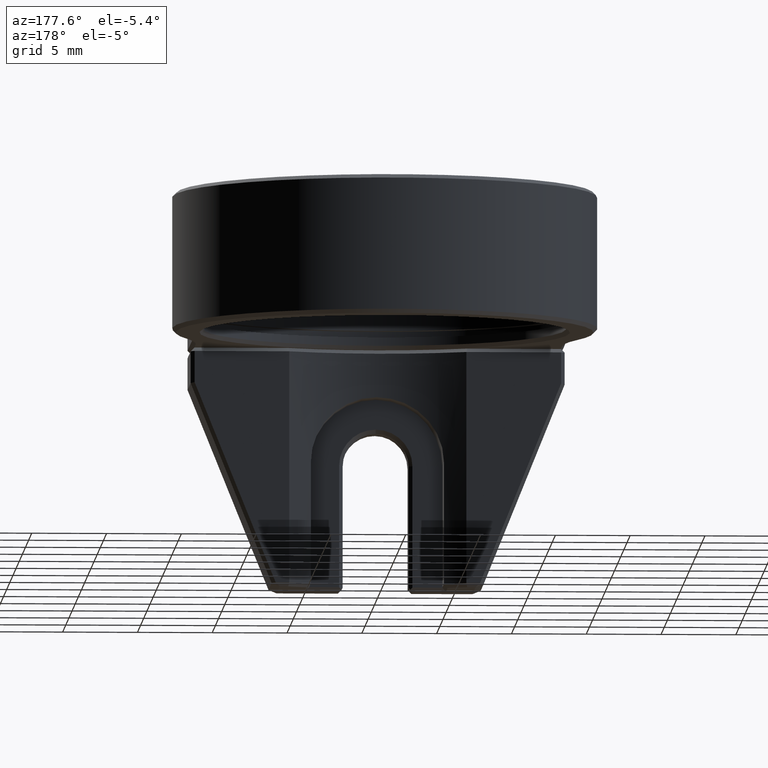
[diagram: clean part render]
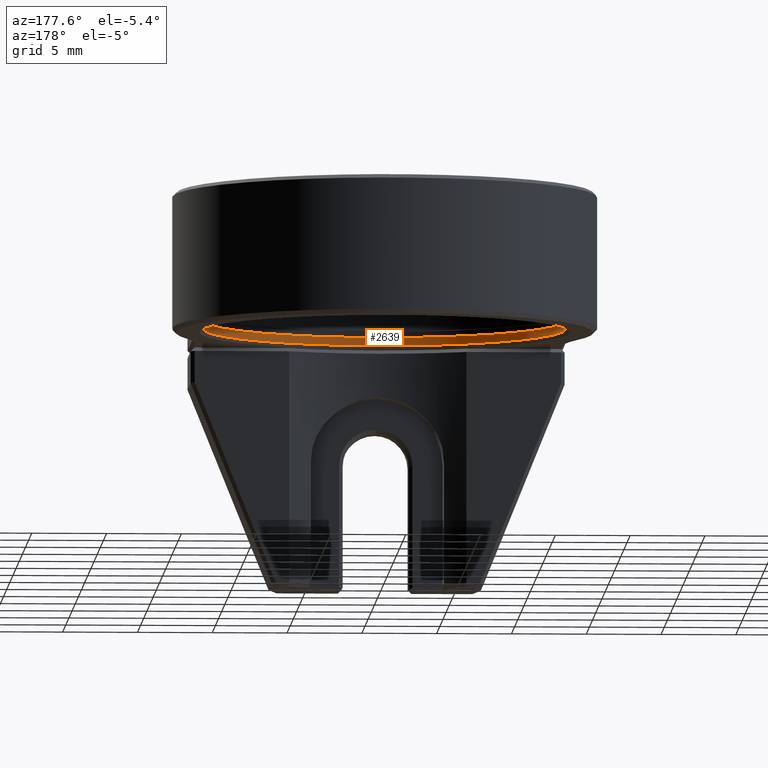
[diagram: same view with one face highlighted and labeled with its STEP entity id]
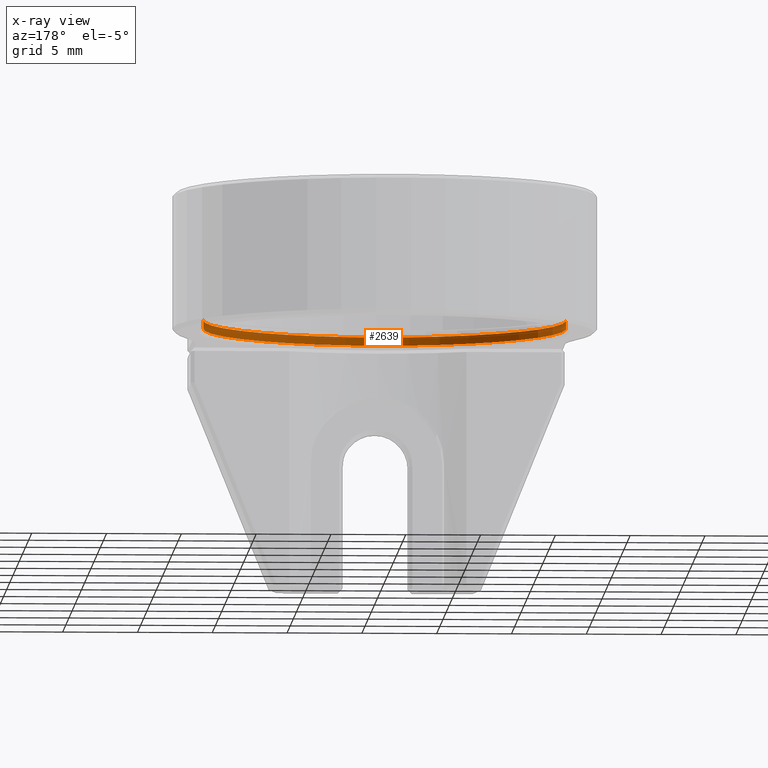
[diagram: x-ray of the same camera — body ghosted, the highlighted face saturated]
A machine part, auxiliary view. The second image highlights one B-rep face of the part: STEP entity #2639.
The next image is the same camera in x-ray: the body ghosted, the highlighted face saturated — about 2% of this face is hidden behind the body in this view.
In plain terms, the highlighted cylindrical surface (partial cylindrical patch) has radius 12.127 mm, axis along (-0, -0, 1).
Its self-contained STEP definition (entity closure, byte-faithful):
#16 = ORIENTED_EDGE ( 'NONE', *, *, #2348, .T. ) ;
#48 = EDGE_LOOP ( 'NONE', ( #6625, #3406, #16, #5820 ) ) ;
#76 = AXIS2_PLACEMENT_3D ( 'NONE', #1655, #3274, #1850 ) ;
#151 = CARTESIAN_POINT ( 'NONE',  ( -12.12700000000000067, 16.50000000000000000, -8.500000000000000000 ) ) ;
#158 = EDGE_CURVE ( 'NONE', #4795, #2172, #6571, .T. ) ;
#706 = EDGE_CURVE ( 'NONE', #1494, #5237, #6241, .T. ) ;
#737 = DIRECTION ( 'NONE',  ( 1.000000000000000000, 0.000000000000000000, 0.000000000000000000 ) ) ;
#1136 = FACE_OUTER_BOUND ( 'NONE', #48, .T. ) ;
#1283 = CARTESIAN_POINT ( 'NONE',  ( 0.000000000000000000, 16.50000000000000000, -9.049999999999995381 ) ) ;
#1494 = VERTEX_POINT ( 'NONE', #5562 ) ;
#1590 = CARTESIAN_POINT ( 'NONE',  ( -12.12700000000000067, 16.50000000000000000, -9.300000000000000711 ) ) ;
#1596 = DIRECTION ( 'NONE',  ( 0.000000000000000000, 0.000000000000000000, 1.000000000000000000 ) ) ;
#1655 = CARTESIAN_POINT ( 'NONE',  ( 0.000000000000000000, 16.50000000000000000, -9.300000000000000711 ) ) ;
#1850 = DIRECTION ( 'NONE',  ( 1.000000000000000000, 0.000000000000000000, 0.000000000000000000 ) ) ;
#2172 = VERTEX_POINT ( 'NONE', #6093 ) ;
#2209 = DIRECTION ( 'NONE',  ( -0.000000000000000000, -0.000000000000000000, 1.000000000000000000 ) ) ;
#2348 = EDGE_CURVE ( 'NONE', #5237, #2172, #5990, .T. ) ;
#2639 = ADVANCED_FACE ( 'NONE', ( #1136 ), #4259, .F. ) ;
#2736 = VECTOR ( 'NONE', #3258, 1000.000000000000000 ) ;
#3147 = CARTESIAN_POINT ( 'NONE',  ( 12.12700000000000067, 16.50000000000000000, -9.300000000000000711 ) ) ;
#3258 = DIRECTION ( 'NONE',  ( -0.000000000000000000, -0.000000000000000000, 1.000000000000000000 ) ) ;
#3274 = DIRECTION ( 'NONE',  ( -0.000000000000000000, -0.000000000000000000, 1.000000000000000000 ) ) ;
#3406 = ORIENTED_EDGE ( 'NONE', *, *, #706, .T. ) ;
#3425 = EDGE_CURVE ( 'NONE', #4795, #1494, #4325, .T. ) ;
#3631 = DIRECTION ( 'NONE',  ( 1.000000000000000000, 0.000000000000000000, 0.000000000000000000 ) ) ;
#4259 = CYLINDRICAL_SURFACE ( 'NONE', #76, 12.12700000000000067 ) ;
#4325 = CIRCLE ( 'NONE', #4456, 12.12700000000000067 ) ;
#4398 = DIRECTION ( 'NONE',  ( -0.000000000000000000, -0.000000000000000000, -1.000000000000000000 ) ) ;
#4456 = AXIS2_PLACEMENT_3D ( 'NONE', #1283, #4398, #737 ) ;
#4795 = VERTEX_POINT ( 'NONE', #6379 ) ;
#4809 = AXIS2_PLACEMENT_3D ( 'NONE', #6728, #1596, #3631 ) ;
#5196 = VECTOR ( 'NONE', #2209, 1000.000000000000000 ) ;
#5237 = VERTEX_POINT ( 'NONE', #151 ) ;
#5562 = CARTESIAN_POINT ( 'NONE',  ( -12.12700000000000067, 16.50000000000000000, -9.049999999999995381 ) ) ;
#5820 = ORIENTED_EDGE ( 'NONE', *, *, #158, .F. ) ;
#5990 = CIRCLE ( 'NONE', #4809, 12.12700000000000067 ) ;
#6093 = CARTESIAN_POINT ( 'NONE',  ( 12.12700000000000067, 16.50000000000000000, -8.500000000000000000 ) ) ;
#6241 = LINE ( 'NONE', #1590, #2736 ) ;
#6379 = CARTESIAN_POINT ( 'NONE',  ( 12.12700000000000067, 16.50000000000000000, -9.049999999999995381 ) ) ;
#6571 = LINE ( 'NONE', #3147, #5196 ) ;
#6625 = ORIENTED_EDGE ( 'NONE', *, *, #3425, .T. ) ;
#6728 = CARTESIAN_POINT ( 'NONE',  ( 0.000000000000000000, 16.50000000000000000, -8.500000000000000000 ) ) ;